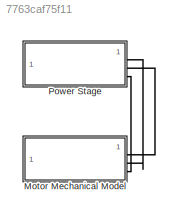
MODEL slx_7763caf75f11
KIND model
CONFIG AbsTol = auto
CONFIG EnableMultiTasking = off
CONFIG FixedStep = auto
CONFIG MaxStep = auto
CONFIG MinStep = auto
CONFIG RelTol = 1e-3
CONFIG SampleTimeConstraint = Unconstrained
CONFIG SolverName = VariableStepAuto
CONFIG StartTime = 0.0
CONFIG StopTime = 0.15
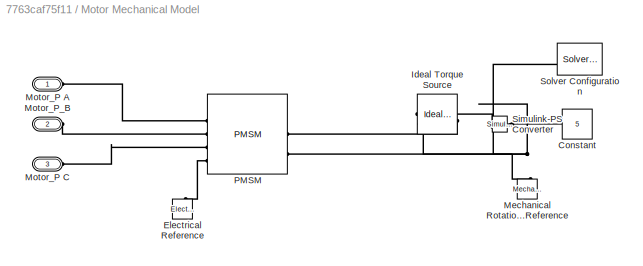
BLOCK [SubSystem] Motor Mechanical Model
  NameLocation = top
BLOCK [Constant] Motor Mechanical Model/Constant
  NameLocation = top
  Value = 5
BLOCK [Reference] Motor Mechanical Model/Electrical Reference  REF=fl_lib/Electrical/Electrical Elements/Electrical Reference
  NameLocation = right
  SourceBlock = fl_lib/Electrical/Electrical Elements/Electrical Reference
  SourceType = Electrical Reference
BLOCK [Reference] Motor Mechanical Model/Ideal Torque Source  REF=fl_lib/Mechanical/Mechanical Sources/Ideal Torque Source
  NameLocation = top
  SourceBlock = fl_lib/Mechanical/Mechanical Sources/Ideal Torque Source
  SourceType = Ideal Torque Source
BLOCK [Reference] Motor Mechanical Model/Mechanical Rotational Reference  REF=fl_lib/Mechanical/Rotational Elements/Mechanical
Rotational Reference
  NameLocation = right
  SourceBlock = fl_lib/Mechanical/Rotational Elements/Mechanical\nRotational Reference
  SourceType = Mechanical\nRotational Reference
BLOCK [PMIOPort] Motor Mechanical Model/Motor_P A
  Side = Left
BLOCK [PMIOPort] Motor Mechanical Model/Motor_P C
  Port = 3
  Side = Left
BLOCK [PMIOPort] Motor Mechanical Model/Motor_P_B
  Port = 2
  Side = Left
BLOCK [Reference] Motor Mechanical Model/PMSM  REF=ee_lib/Electromechanical/Permanent Magnet/PMSM
  SourceBlock = ee_lib/Electromechanical/Permanent Magnet/PMSM
  SourceType = PMSM
BLOCK [Reference] Motor Mechanical Model/Simulink-PS Converter  REF=nesl_utility/Simulink-PS
Converter
  NameLocation = top
  SourceBlock = nesl_utility/Simulink-PS\nConverter
  SourceType = Simulink-PS\nConverter
BLOCK [Reference] Motor Mechanical Model/Solver Configuration  REF=nesl_utility/Solver
Configuration
  NameLocation = top
  SourceBlock = nesl_utility/Solver\nConfiguration
  SourceType = Solver\nConfiguration
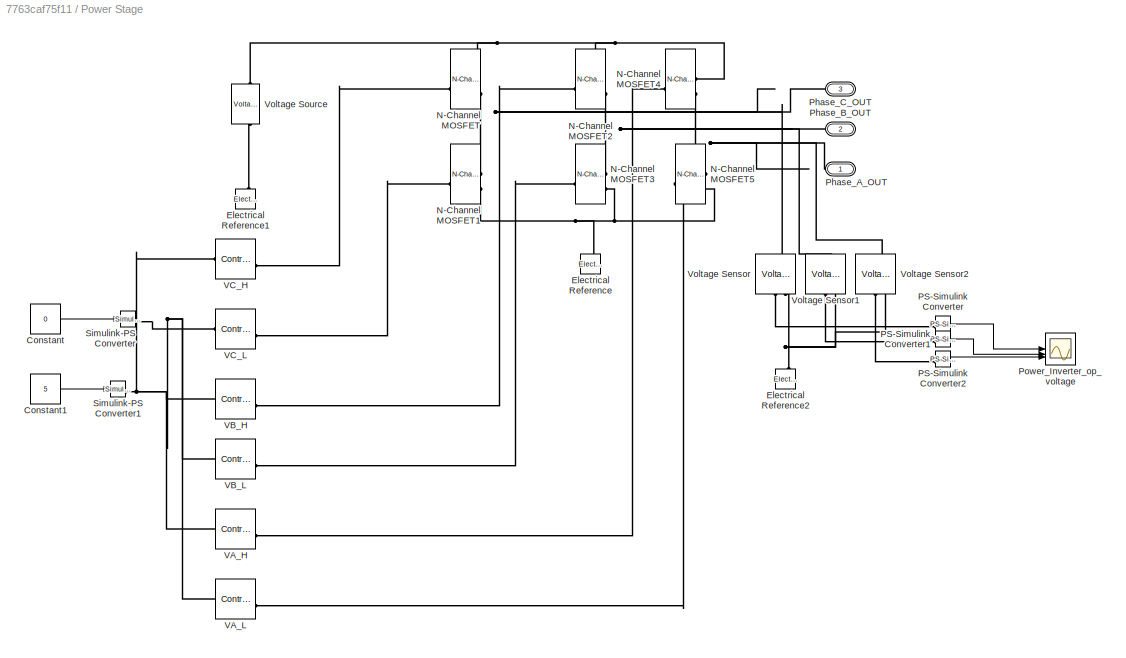
BLOCK [SubSystem] Power Stage
  NameLocation = top
BLOCK [Constant] Power Stage/Constant
  Value = 0
BLOCK [Constant] Power Stage/Constant1
  Value = 5
BLOCK [Reference] Power Stage/Electrical Reference  REF=fl_lib/Electrical/Electrical Elements/Electrical Reference
  NameLocation = right
  SourceBlock = fl_lib/Electrical/Electrical Elements/Electrical Reference
  SourceType = Electrical Reference
BLOCK [Reference] Power Stage/Electrical Reference1  REF=fl_lib/Electrical/Electrical Elements/Electrical Reference
  NameLocation = right
  SourceBlock = fl_lib/Electrical/Electrical Elements/Electrical Reference
  SourceType = Electrical Reference
BLOCK [Reference] Power Stage/Electrical Reference2  REF=fl_lib/Electrical/Electrical Elements/Electrical Reference
  NameLocation = right
  SourceBlock = fl_lib/Electrical/Electrical Elements/Electrical Reference
  SourceType = Electrical Reference
BLOCK [Reference] Power Stage/N-Channel MOSFET  REF=ee_lib/Semiconductors &
Converters/N-Channel MOSFET
  SourceBlock = ee_lib/Semiconductors &\nConverters/N-Channel MOSFET
  SourceType = N-Channel MOSFET
BLOCK [Reference] Power Stage/N-Channel MOSFET1  REF=ee_lib/Semiconductors &
Converters/N-Channel MOSFET
  SourceBlock = ee_lib/Semiconductors &\nConverters/N-Channel MOSFET
  SourceType = N-Channel MOSFET
BLOCK [Reference] Power Stage/N-Channel MOSFET2  REF=ee_lib/Semiconductors &
Converters/N-Channel MOSFET
  SourceBlock = ee_lib/Semiconductors &\nConverters/N-Channel MOSFET
  SourceType = N-Channel MOSFET
BLOCK [Reference] Power Stage/N-Channel MOSFET3  REF=ee_lib/Semiconductors &
Converters/N-Channel MOSFET
  SourceBlock = ee_lib/Semiconductors &\nConverters/N-Channel MOSFET
  SourceType = N-Channel MOSFET
BLOCK [Reference] Power Stage/N-Channel MOSFET4  REF=ee_lib/Semiconductors &
Converters/N-Channel MOSFET
  SourceBlock = ee_lib/Semiconductors &\nConverters/N-Channel MOSFET
  SourceType = N-Channel MOSFET
BLOCK [Reference] Power Stage/N-Channel MOSFET5  REF=ee_lib/Semiconductors &
Converters/N-Channel MOSFET
  SourceBlock = ee_lib/Semiconductors &\nConverters/N-Channel MOSFET
  SourceType = N-Channel MOSFET
BLOCK [Reference] Power Stage/PS-Simulink Converter  REF=nesl_utility/PS-Simulink
Converter
  SourceBlock = nesl_utility/PS-Simulink\nConverter
  SourceType = PS-Simulink\nConverter
BLOCK [Reference] Power Stage/PS-Simulink Converter1  REF=nesl_utility/PS-Simulink
Converter
  SourceBlock = nesl_utility/PS-Simulink\nConverter
  SourceType = PS-Simulink\nConverter
BLOCK [Reference] Power Stage/PS-Simulink Converter2  REF=nesl_utility/PS-Simulink
Converter
  SourceBlock = nesl_utility/PS-Simulink\nConverter
  SourceType = PS-Simulink\nConverter
BLOCK [PMIOPort] Power Stage/Phase_A_OUT
  NameLocation = top
  Side = Left
BLOCK [PMIOPort] Power Stage/Phase_B_OUT
  NameLocation = top
  Port = 2
  Side = Left
BLOCK [PMIOPort] Power Stage/Phase_C_OUT
  NameLocation = top
  Port = 3
  Side = Left
BLOCK [Scope] Power Stage/Power_Inverter_op_voltage
  Floating = off
  NumInputPorts = 3
  ScopeSpecificationString = Simulink.scopes.TimeScopeBlockCfg('CurrentConfiguration', extmgr.ConfigurationSet(extmgr.Configuration('Core','General UI',true),extmgr.Configuration('Core','Source UI',true),extmgr.Configuration('Sources','WiredSimulink',true),extmgr.Configuration('Visuals','Time Domain',true,'SerializedDisplays',{struct('MinYLimReal','-51.52166','MaxYLimReal','47.43479','YLabelReal','','MinYLimMag','0.00000','Ma...<+1874ch>
BLOCK [Reference] Power Stage/Simulink-PS Converter  REF=nesl_utility/Simulink-PS
Converter
  SourceBlock = nesl_utility/Simulink-PS\nConverter
  SourceType = Simulink-PS\nConverter
BLOCK [Reference] Power Stage/Simulink-PS Converter1  REF=nesl_utility/Simulink-PS
Converter
  SourceBlock = nesl_utility/Simulink-PS\nConverter
  SourceType = Simulink-PS\nConverter
BLOCK [Reference] Power Stage/VA_H  REF=fl_lib/Electrical/Electrical Sources/Controlled Voltage
Source
  SourceBlock = fl_lib/Electrical/Electrical Sources/Controlled Voltage\nSource
  SourceType = Controlled Voltage\nSource
BLOCK [Reference] Power Stage/VA_L  REF=fl_lib/Electrical/Electrical Sources/Controlled Voltage
Source
  SourceBlock = fl_lib/Electrical/Electrical Sources/Controlled Voltage\nSource
  SourceType = Controlled Voltage\nSource
BLOCK [Reference] Power Stage/VB_H  REF=fl_lib/Electrical/Electrical Sources/Controlled Voltage
Source
  SourceBlock = fl_lib/Electrical/Electrical Sources/Controlled Voltage\nSource
  SourceType = Controlled Voltage\nSource
BLOCK [Reference] Power Stage/VB_L  REF=fl_lib/Electrical/Electrical Sources/Controlled Voltage
Source
  SourceBlock = fl_lib/Electrical/Electrical Sources/Controlled Voltage\nSource
  SourceType = Controlled Voltage\nSource
BLOCK [Reference] Power Stage/VC_H  REF=fl_lib/Electrical/Electrical Sources/Controlled Voltage
Source
  SourceBlock = fl_lib/Electrical/Electrical Sources/Controlled Voltage\nSource
  SourceType = Controlled Voltage\nSource
BLOCK [Reference] Power Stage/VC_L   REF=fl_lib/Electrical/Electrical Sources/Controlled Voltage
Source
  SourceBlock = fl_lib/Electrical/Electrical Sources/Controlled Voltage\nSource
  SourceType = Controlled Voltage\nSource
BLOCK [Reference] Power Stage/Voltage Sensor  REF=fl_lib/Electrical/Electrical Sensors/Voltage Sensor
  NameLocation = right
  SourceBlock = fl_lib/Electrical/Electrical Sensors/Voltage Sensor
  SourceType = Voltage Sensor
BLOCK [Reference] Power Stage/Voltage Sensor1  REF=fl_lib/Electrical/Electrical Sensors/Voltage Sensor
  NameLocation = right
  SourceBlock = fl_lib/Electrical/Electrical Sensors/Voltage Sensor
  SourceType = Voltage Sensor
BLOCK [Reference] Power Stage/Voltage Sensor2  REF=fl_lib/Electrical/Electrical Sensors/Voltage Sensor
  NameLocation = right
  SourceBlock = fl_lib/Electrical/Electrical Sensors/Voltage Sensor
  SourceType = Voltage Sensor
BLOCK [Reference] Power Stage/Voltage Source  REF=ee_lib/Sources/Voltage Source
  NameLocation = right
  SourceBlock = ee_lib/Sources/Voltage Source
  SourceType = Voltage Source
LINE Motor Mechanical Model/Constant:1 -> Motor Mechanical Model/Simulink-PS Converter:1
LINE Power Stage/Constant1:1 -> Power Stage/Simulink-PS Converter1:1
LINE Power Stage/Constant:1 -> Power Stage/Simulink-PS Converter:1
LINE Power Stage/PS-Simulink Converter1:1 -> Power Stage/Power_Inverter_op_voltage:2
LINE Power Stage/PS-Simulink Converter2:1 -> Power Stage/Power_Inverter_op_voltage:3
LINE Power Stage/PS-Simulink Converter:1 -> Power Stage/Power_Inverter_op_voltage:1
PLINE Motor Mechanical Model/Electrical Reference:LConn1 -- Motor Mechanical Model/PMSM:LConn4
PLINE Motor Mechanical Model/Ideal Torque Source:LConn1 -- Motor Mechanical Model/PMSM:RConn1
PLINE Motor Mechanical Model/Ideal Torque Source:RConn1 -- Motor Mechanical Model/Simulink-PS Converter:RConn1
PNET net1: Motor Mechanical Model/Ideal Torque Source:RConn2 -- Motor Mechanical Model/Mechanical Rotational Reference:LConn1 -- Motor Mechanical Model/PMSM:RConn2 -- Motor Mechanical Model/Solver Configuration:RConn1
PLINE Motor Mechanical Model/Motor_P A:RConn1 -- Motor Mechanical Model/PMSM:LConn1
PLINE Motor Mechanical Model/Motor_P C:RConn1 -- Motor Mechanical Model/PMSM:LConn3
PLINE Motor Mechanical Model/Motor_P_B:RConn1 -- Motor Mechanical Model/PMSM:LConn2
PLINE Motor Mechanical Model:LConn1 -- Power Stage:LConn2
PLINE Motor Mechanical Model:LConn2 -- Power Stage:LConn1
PLINE Motor Mechanical Model:LConn3 -- Power Stage:LConn3
PLINE Power Stage/Electrical Reference1:LConn1 -- Power Stage/Voltage Source:RConn1
PNET net2: Power Stage/Electrical Reference2:LConn1 -- Power Stage/Voltage Sensor1:RConn2 -- Power Stage/Voltage Sensor2:RConn2 -- Power Stage/Voltage Sensor:RConn2
PNET net3: Power Stage/Electrical Reference:LConn1 -- Power Stage/N-Channel MOSFET1:RConn2 -- Power Stage/N-Channel MOSFET3:RConn2 -- Power Stage/N-Channel MOSFET5:RConn2
PLINE Power Stage/N-Channel MOSFET1:LConn1 -- Power Stage/VC_L :LConn1
PNET net4: Power Stage/N-Channel MOSFET1:RConn1 -- Power Stage/N-Channel MOSFET:RConn2 -- Power Stage/Phase_C_OUT:RConn1 -- Power Stage/Voltage Sensor:LConn1
PLINE Power Stage/N-Channel MOSFET2:LConn1 -- Power Stage/VB_H:LConn1
PNET net5: Power Stage/N-Channel MOSFET2:RConn1 -- Power Stage/N-Channel MOSFET4:RConn1 -- Power Stage/N-Channel MOSFET:RConn1 -- Power Stage/Voltage Source:LConn1
PNET net6: Power Stage/N-Channel MOSFET2:RConn2 -- Power Stage/N-Channel MOSFET3:RConn1 -- Power Stage/Phase_B_OUT:RConn1 -- Power Stage/Voltage Sensor1:LConn1
PLINE Power Stage/N-Channel MOSFET3:LConn1 -- Power Stage/VB_L:LConn1
PLINE Power Stage/N-Channel MOSFET4:LConn1 -- Power Stage/VA_H:LConn1
PNET net7: Power Stage/N-Channel MOSFET4:RConn2 -- Power Stage/N-Channel MOSFET5:RConn1 -- Power Stage/Phase_A_OUT:RConn1 -- Power Stage/Voltage Sensor2:LConn1
PLINE Power Stage/N-Channel MOSFET5:LConn1 -- Power Stage/VA_L:LConn1
PLINE Power Stage/N-Channel MOSFET:LConn1 -- Power Stage/VC_H:LConn1
PLINE Power Stage/PS-Simulink Converter1:LConn1 -- Power Stage/Voltage Sensor1:RConn1
PLINE Power Stage/PS-Simulink Converter2:LConn1 -- Power Stage/Voltage Sensor2:RConn1
PLINE Power Stage/PS-Simulink Converter:LConn1 -- Power Stage/Voltage Sensor:RConn1
PNET net8: Power Stage/Simulink-PS Converter1:RConn1 -- Power Stage/VA_H:RConn1 -- Power Stage/VB_H:RConn1 -- Power Stage/VC_H:RConn1
PNET net9: Power Stage/Simulink-PS Converter:RConn1 -- Power Stage/VA_L:RConn1 -- Power Stage/VB_L:RConn1 -- Power Stage/VC_L :RConn1
note: PNET lines group multi-terminal physical nets as a canonical sorted terminal list (undirected conserving connections); 2-terminal nets keep the pairwise PLINE form
